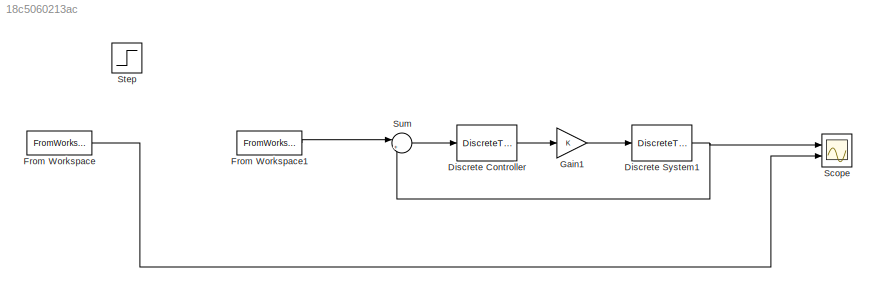
MODEL slx_18c5060213ac
KIND model
CONFIG AbsTol = auto
CONFIG EnableMultiTasking = off
CONFIG FixedStep = Ts
CONFIG MaxStep = auto
CONFIG MinStep = auto
CONFIG RelTol = 1e-3
CONFIG SampleTimeConstraint = Unconstrained
CONFIG Solver = FixedStepDiscrete
CONFIG SolverName = FixedStepDiscrete
CONFIG StartTime = 0.0
CONFIG StopTime = 10
BLOCK [DiscreteTransferFcn] Discrete Controller
  Denominator = cd_den_clean
  InputPortMap = u0
  Numerator = cd_num_clean
  Ports = [1, 1]
  SampleTime = Ts
BLOCK [DiscreteTransferFcn] Discrete System1
  Denominator = d_den
  InputPortMap = u0
  Numerator = d_num
  Ports = [1, 1]
BLOCK [FromWorkspace] From Workspace
  SampleTime = 0.001
  VariableName = traj
  ZeroCross = on
BLOCK [FromWorkspace] From Workspace1
  SampleTime = 0.001
  VariableName = input_pi
  ZeroCross = on
BLOCK [Gain] Gain1
  OutDataTypeStr = Inherit: Inherit via internal rule
  ParamDataTypeStr = Inherit: Inherit via internal rule
  SaturateOnIntegerOverflow = off
BLOCK [Scope] Scope
  NumInputPorts = 2
  Ports = [2]
  ScopeSpecificationString = Simulink.scopes.TimeScopeBlockCfg('CurrentConfiguration', extmgr.ConfigurationSet(extmgr.Configuration('Core','General UI',true),extmgr.Configuration('Core','Source UI',true),extmgr.Configuration('Sources','WiredSimulink',true),extmgr.Configuration('Visuals','Time Domain',true,'SerializedDisplays',{struct('MinYLimReal','-37.50001','MaxYLimReal','337.50006','YLabelReal','','MinYLimMag','0.00000','M...<+1754ch>
BLOCK [Step] Step
  After = 100
  SampleTime = Ts
BLOCK [Sum] Sum
  IconShape = round
  InputSameDT = off
  Inputs = |+-
  OutDataTypeStr = Inherit: Inherit via internal rule
  Ports = [2, 1]
  SaturateOnIntegerOverflow = off
LINE Discrete Controller:1 -> Gain1:1
NET Discrete System1:1 -> Scope:1, Sum:2
LINE From Workspace1:1 -> Sum:1
LINE From Workspace:1 -> Scope:2
LINE Gain1:1 -> Discrete System1:1
LINE Sum:1 -> Discrete Controller:1
note: NET lines group one-source signal fan-out (src -> all destinations, sorted); 1:1 wires keep LINE
